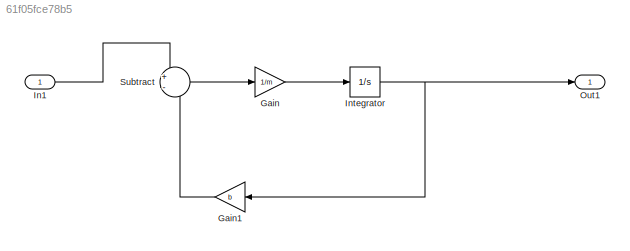
MODEL slx_61f05fce78b5
KIND model
CONFIG AbsTol = auto
CONFIG EnableMultiTasking = off
CONFIG FixedStep = auto
CONFIG MaxStep = auto
CONFIG MinStep = auto
CONFIG RelTol = 1e-3
CONFIG SampleTimeConstraint = Unconstrained
CONFIG Solver = VariableStepAuto
CONFIG SolverName = VariableStepAuto
CONFIG StartTime = 0.0
CONFIG StopTime = 10.0
WORKSPACE source: mxarray member
WORKSPACE Ki: Simulink.Parameter (value not decoded)
WORKSPACE Kp: Simulink.Parameter (value not decoded)
WORKSPACE ki: Simulink.Parameter (value not decoded)
WORKSPACE kp: Simulink.Parameter (value not decoded)
BLOCK [Gain] Gain 
  Gain = 1/m
BLOCK [Gain] Gain1 
  Gain = b
BLOCK [Inport] In1
  OutDataTypeStr = double
  PortDimensions = 1
  SampleTime = 0
  SamplingMode = Sample based
  SignalType = real
BLOCK [Integrator] Integrator 
  Ports = [1, 1]
BLOCK [Outport] Out1
  OutDataTypeStr = double
  PortDimensions = 1
  SampleTime = 0
  SamplingMode = Sample based
  SignalType = real
BLOCK [Sum] Subtract
  Inputs = +-
  Ports = [2, 1]
LINE Gain :1 -> Integrator :1
LINE Gain1 :1 -> Subtract:2
LINE In1:1 -> Subtract:1
NET Integrator :1 -> Gain1 :1, Out1:1
LINE Subtract:1 -> Gain :1
note: NET lines group one-source signal fan-out (src -> all destinations, sorted); 1:1 wires keep LINE
